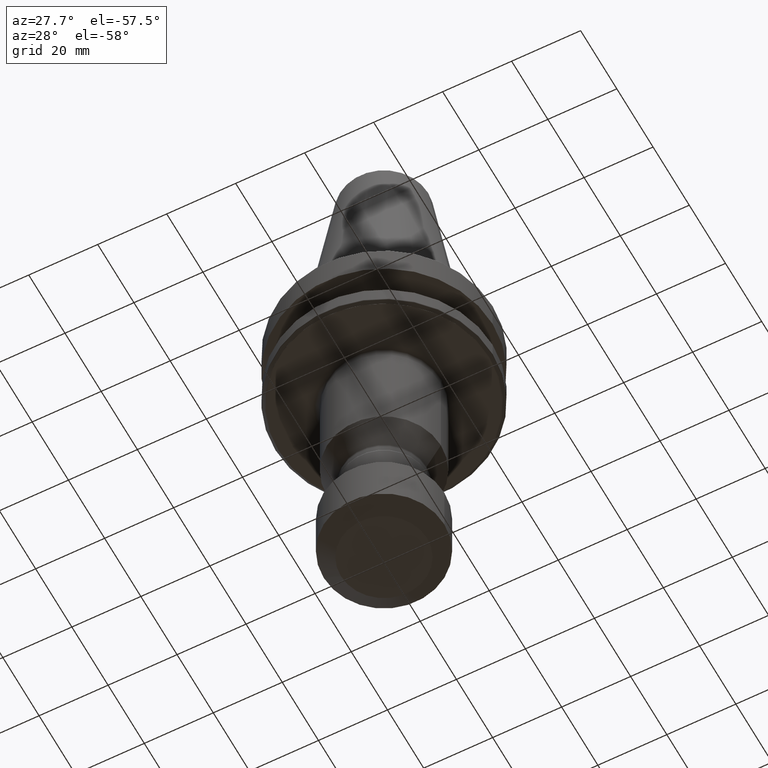
[diagram: clean part render]
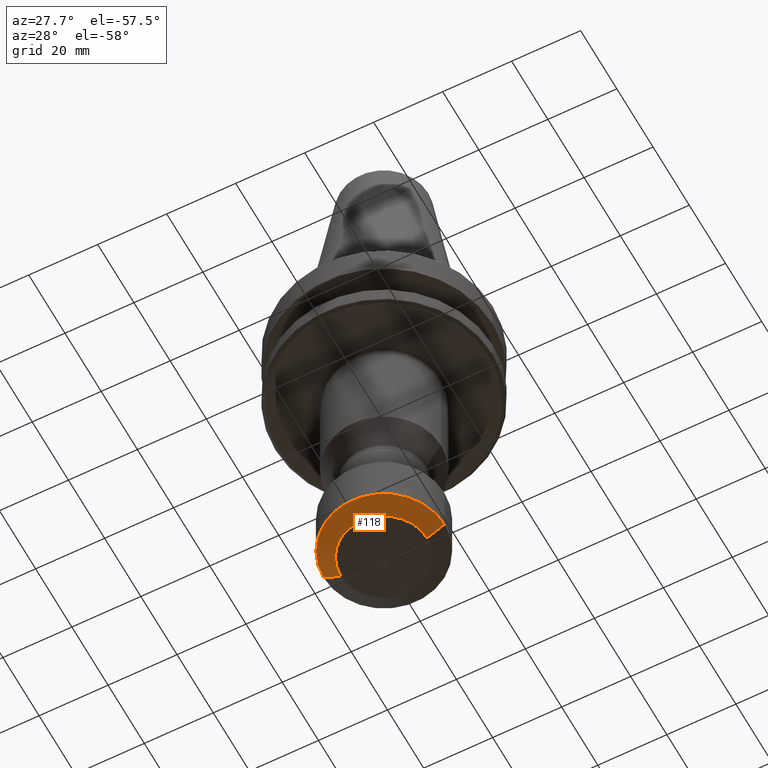
[diagram: same view with one face highlighted and labeled with its STEP entity id]
A machine part, auxiliary view. The second image highlights one B-rep face of the part: STEP entity #118.
In plain terms, the highlighted conical surface has half-angle 60 deg.
Its self-contained STEP definition (entity closure, byte-faithful):
#47 = CARTESIAN_POINT ( 'NONE',  ( 0.0000000000000000000, 0.0000000000000000000, -97.11324865405248400 ) ) ;
#118 = ADVANCED_FACE ( 'NONE', ( #508 ), #488, .T. ) ;
#134 = CARTESIAN_POINT ( 'NONE',  ( -12.49901631902918500, 1.836849732545736900E-015, -100.0000000000000000 ) ) ;
#154 = DIRECTION ( 'NONE',  ( 0.8660254037844387100, 0.0000000000000000000, 0.4999999999999998900 ) ) ;
#186 = CIRCLE ( 'NONE', #1152, 17.49901631902814400 ) ;
#204 = DIRECTION ( 'NONE',  ( 1.000000000000000000, 0.0000000000000000000, 0.0000000000000000000 ) ) ;
#215 = VECTOR ( 'NONE', #154, 1000.000000000000000 ) ;
#218 = LINE ( 'NONE', #308, #215 ) ;
#242 = LINE ( 'NONE', #1233, #261 ) ;
#261 = VECTOR ( 'NONE', #417, 1000.000000000000000 ) ;
#308 = CARTESIAN_POINT ( 'NONE',  ( 12.49901631902918500, 0.0000000000000000000, -100.0000000000000000 ) ) ;
#400 = EDGE_CURVE ( 'NONE', #694, #1329, #403, .T. ) ;
#403 = CIRCLE ( 'NONE', #819, 12.49901631902918500 ) ;
#417 = DIRECTION ( 'NONE',  ( -0.8660254037844387100, 1.060575238724906900E-016, 0.4999999999999998900 ) ) ;
#440 = CARTESIAN_POINT ( 'NONE',  ( -17.49901631902814400, 2.143011432332511200E-015, -97.11324865405248400 ) ) ;
#488 = CONICAL_SURFACE ( 'NONE', #641, 12.49901631902918500, 1.047197551196597900 ) ;
#508 = FACE_OUTER_BOUND ( 'NONE', #1035, .T. ) ;
#555 = ORIENTED_EDGE ( 'NONE', *, *, #943, .T. ) ;
#641 = AXIS2_PLACEMENT_3D ( 'NONE', #1433, #1238, #769 ) ;
#656 = ORIENTED_EDGE ( 'NONE', *, *, #885, .F. ) ;
#694 = VERTEX_POINT ( 'NONE', #134 ) ;
#765 = CARTESIAN_POINT ( 'NONE',  ( 0.0000000000000000000, 0.0000000000000000000, -100.0000000000000000 ) ) ;
#769 = DIRECTION ( 'NONE',  ( 1.000000000000000000, 0.0000000000000000000, 0.0000000000000000000 ) ) ;
#794 = CARTESIAN_POINT ( 'NONE',  ( 17.49901631902814400, 0.0000000000000000000, -97.11324865405248400 ) ) ;
#819 = AXIS2_PLACEMENT_3D ( 'NONE', #765, #1117, #1115 ) ;
#885 = EDGE_CURVE ( 'NONE', #694, #1188, #242, .T. ) ;
#888 = ORIENTED_EDGE ( 'NONE', *, *, #1057, .F. ) ;
#930 = ORIENTED_EDGE ( 'NONE', *, *, #400, .T. ) ;
#939 = DIRECTION ( 'NONE',  ( -0.0000000000000000000, -0.0000000000000000000, 1.000000000000000000 ) ) ;
#943 = EDGE_CURVE ( 'NONE', #1329, #1041, #218, .T. ) ;
#1035 = EDGE_LOOP ( 'NONE', ( #656, #930, #555, #888 ) ) ;
#1041 = VERTEX_POINT ( 'NONE', #794 ) ;
#1057 = EDGE_CURVE ( 'NONE', #1188, #1041, #186, .T. ) ;
#1115 = DIRECTION ( 'NONE',  ( 1.000000000000000000, 0.0000000000000000000, 0.0000000000000000000 ) ) ;
#1117 = DIRECTION ( 'NONE',  ( -0.0000000000000000000, -0.0000000000000000000, 1.000000000000000000 ) ) ;
#1152 = AXIS2_PLACEMENT_3D ( 'NONE', #47, #939, #204 ) ;
#1188 = VERTEX_POINT ( 'NONE', #440 ) ;
#1221 = CARTESIAN_POINT ( 'NONE',  ( 12.49901631902918500, 0.0000000000000000000, -100.0000000000000000 ) ) ;
#1233 = CARTESIAN_POINT ( 'NONE',  ( -12.49901631902918500, 1.530688032758962500E-015, -100.0000000000000000 ) ) ;
#1238 = DIRECTION ( 'NONE',  ( -0.0000000000000000000, -0.0000000000000000000, 1.000000000000000000 ) ) ;
#1329 = VERTEX_POINT ( 'NONE', #1221 ) ;
#1433 = CARTESIAN_POINT ( 'NONE',  ( 0.0000000000000000000, 0.0000000000000000000, -100.0000000000000000 ) ) ;